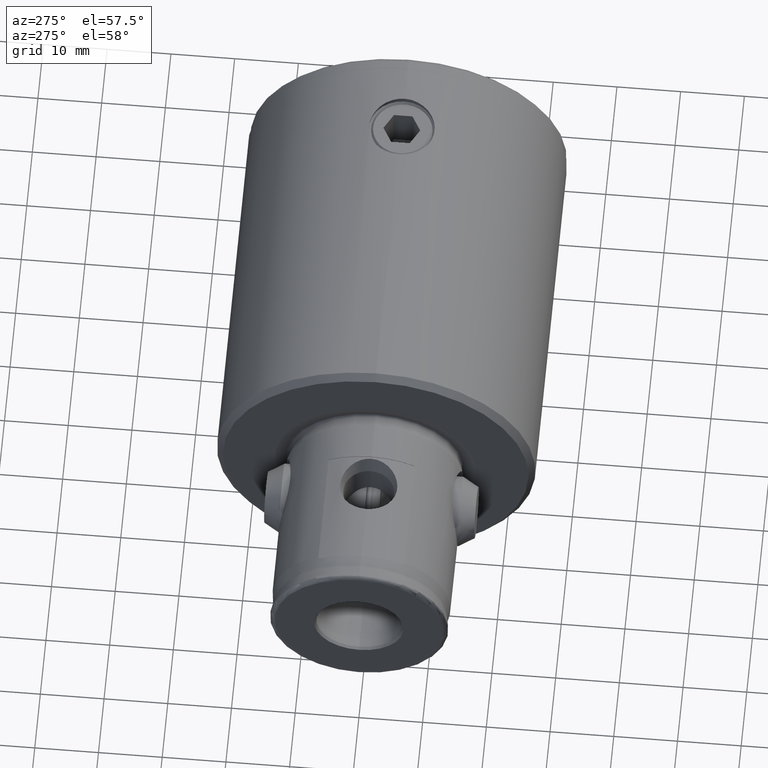
[diagram: clean part render]
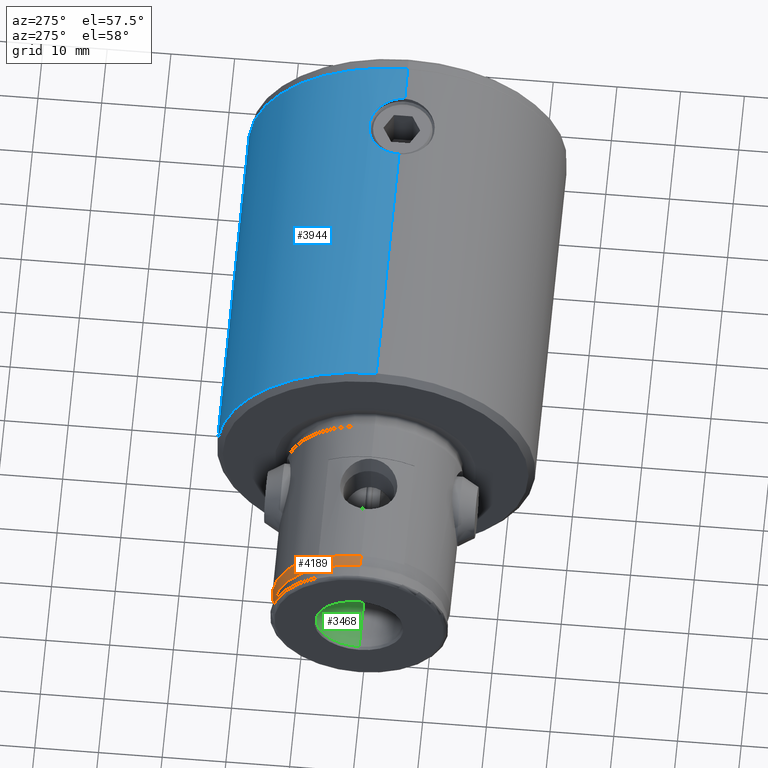
[diagram: same view with three faces highlighted in distinct colors, each labeled with its STEP entity id]
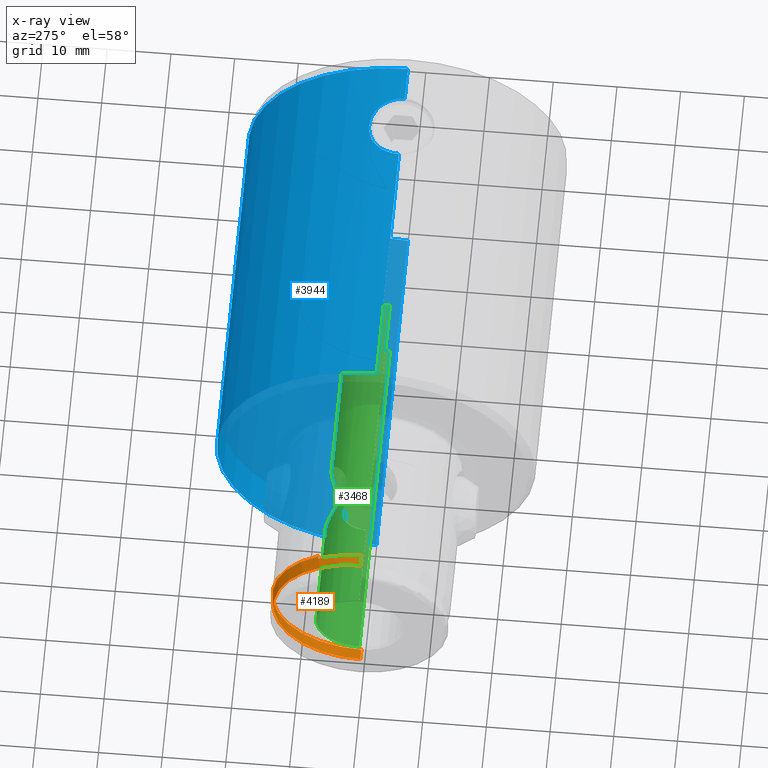
[diagram: x-ray of the same camera — body ghosted, the three highlighted faces saturated]
A machine part, auxiliary view with three faces highlighted in distinct colors.
The next image is the same camera in x-ray (body ghosted, the three faces saturated) — at least one of them is partly hidden behind the body in this view.
Their STEP definitions:

[orange] entity #4189 — the highlighted conical surface has half-angle 10 deg.
#4 = CARTESIAN_POINT ( 'NONE',  ( 12.19529657203607800, 6.750000000000000000, 85.84756804027078700 ) ) ;
#72 = DIRECTION ( 'NONE',  ( -1.000000000000000000, 0.0000000000000000000, 0.0000000000000000000 ) ) ;
#175 = CARTESIAN_POINT ( 'NONE',  ( -13.64734603858307000, 1.692911691553500600E-015, 87.50000000000000000 ) ) ;
#220 = VERTEX_POINT ( 'NONE', #2241 ) ;
#263 = CARTESIAN_POINT ( 'NONE',  ( 13.92999999999999800, 2.207735981836106700E-015, 85.89698972737325300 ) ) ;
#264 = ORIENTED_EDGE ( 'NONE', *, *, #2728, .F. ) ;
#290 = FACE_OUTER_BOUND ( 'NONE', #3448, .T. ) ;
#358 = CARTESIAN_POINT ( 'NONE',  ( 12.26529657203608200, 6.750000000000000000, 85.49999999999998600 ) ) ;
#631 = CARTESIAN_POINT ( 'NONE',  ( 13.62566706623489500, 2.918193365381274200, 85.88831703268405700 ) ) ;
#644 = CARTESIAN_POINT ( 'NONE',  ( 13.92999999999999600, 0.5841741779149369800, 85.89698972737323900 ) ) ;
#945 = DIRECTION ( 'NONE',  ( 1.000000000000000000, 0.0000000000000000000, 0.0000000000000000000 ) ) ;
#961 = DIRECTION ( 'NONE',  ( 0.0000000000000000000, 0.0000000000000000000, 1.000000000000000000 ) ) ;
#971 = DIRECTION ( 'NONE',  ( 1.000000000000000000, 0.0000000000000000000, 0.0000000000000000000 ) ) ;
#1131 = CONICAL_SURFACE ( 'NONE', #2423, 13.64734603858307000, 0.1745329251994337200 ) ;
#1152 = CARTESIAN_POINT ( 'NONE',  ( 0.0000000000000000000, 0.0000000000000000000, 87.50000000000000000 ) ) ;
#1165 = EDGE_CURVE ( 'NONE', #2285, #4094, #4638, .T. ) ;
#1362 = CARTESIAN_POINT ( 'NONE',  ( 13.89358345885705900, 1.168449472071401600, 85.89595187474115800 ) ) ;
#1702 = CIRCLE ( 'NONE', #4491, 14.00000000000000200 ) ;
#1871 = VERTEX_POINT ( 'NONE', #2853 ) ;
#2050 = B_SPLINE_CURVE_WITH_KNOTS ( 'NONE', 3,
 ( #2123, #2436, #3540, #3893, #631, #3171, #3494, #1362, #644, #263 ),
 .UNSPECIFIED., .F., .F.,
 ( 4, 2, 2, 2, 4 ),
 ( 2.250691753477035200E-007, 0.003505266093153995700, 0.004381526349148657200, 0.005257786605143319500, 0.007010307117132643300 ),
 .UNSPECIFIED. ) ;
#2119 = CARTESIAN_POINT ( 'NONE',  ( 0.0000000000000000000, 0.0000000000000000000, 87.50000000000000000 ) ) ;
#2123 = CARTESIAN_POINT ( 'NONE',  ( 12.19529657203607800, 6.750000000000000000, 85.84756804027078700 ) ) ;
#2180 = CARTESIAN_POINT ( 'NONE',  ( 13.64734603858307000, 0.0000000000000000000, 87.50000000000000000 ) ) ;
#2195 = DIRECTION ( 'NONE',  ( -0.1736481776669311400, 0.0000000000000000000, -0.9848077530122080200 ) ) ;
#2241 = CARTESIAN_POINT ( 'NONE',  ( 13.92999999999999800, 2.207735981836106700E-015, 85.89698972737325300 ) ) ;
#2285 = VERTEX_POINT ( 'NONE', #3436 ) ;
#2329 = VERTEX_POINT ( 'NONE', #175 ) ;
#2423 = AXIS2_PLACEMENT_3D ( 'NONE', #1152, #2604, #72 ) ;
#2436 = CARTESIAN_POINT ( 'NONE',  ( 12.76666059738928600, 5.711785300511198900, 85.86384110839763700 ) ) ;
#2604 = DIRECTION ( 'NONE',  ( 0.0000000000000000000, 0.0000000000000000000, -1.000000000000000000 ) ) ;
#2658 = EDGE_CURVE ( 'NONE', #4145, #220, #3734, .T. ) ;
#2728 = EDGE_CURVE ( 'NONE', #4145, #2329, #3025, .T. ) ;
#2785 = CARTESIAN_POINT ( 'NONE',  ( 0.0000000000000000000, 0.0000000000000000000, 85.49999999999998600 ) ) ;
#2829 = ORIENTED_EDGE ( 'NONE', *, *, #2658, .T. ) ;
#2853 = CARTESIAN_POINT ( 'NONE',  ( -14.00000000000000400, 0.0000000000000000000, 85.49999999999998600 ) ) ;
#2893 = CARTESIAN_POINT ( 'NONE',  ( 12.24197818253157900, 6.750000000000000000, 85.61585900633738800 ) ) ;
#3025 = CIRCLE ( 'NONE', #4117, 13.64734603858307000 ) ;
#3053 = ORIENTED_EDGE ( 'NONE', *, *, #3329, .T. ) ;
#3120 = DIRECTION ( 'NONE',  ( 0.0000000000000000000, 0.0000000000000000000, 1.000000000000000000 ) ) ;
#3171 = CARTESIAN_POINT ( 'NONE',  ( 13.73650709996755900, 2.338270858017039700, 85.89147556852006500 ) ) ;
#3175 = LINE ( 'NONE', #3946, #3281 ) ;
#3200 = DIRECTION ( 'NONE',  ( 0.1736481776669311400, 2.126576849575781200E-017, -0.9848077530122080200 ) ) ;
#3281 = VECTOR ( 'NONE', #2195, 999.9999999999998900 ) ;
#3329 = EDGE_CURVE ( 'NONE', #2285, #1871, #1702, .T. ) ;
#3436 = CARTESIAN_POINT ( 'NONE',  ( 12.26529657203608200, 6.750000000000000000, 85.49999999999998600 ) ) ;
#3448 = EDGE_LOOP ( 'NONE', ( #264, #2829, #3609, #4305, #3053, #4036 ) ) ;
#3494 = CARTESIAN_POINT ( 'NONE',  ( 13.78296488589999700, 2.045017888756615500, 85.89279949196569000 ) ) ;
#3540 = CARTESIAN_POINT ( 'NONE',  ( 13.19615552602073200, 4.624224409879828600, 85.87607829345473900 ) ) ;
#3609 = ORIENTED_EDGE ( 'NONE', *, *, #4585, .F. ) ;
#3734 = LINE ( 'NONE', #4487, #4605 ) ;
#3893 = CARTESIAN_POINT ( 'NONE',  ( 13.56134266502923300, 3.205057411833257300, 85.88648406863282500 ) ) ;
#3946 = CARTESIAN_POINT ( 'NONE',  ( -13.64734603858307000, 0.0000000000000000000, 87.50000000000000000 ) ) ;
#3975 = CARTESIAN_POINT ( 'NONE',  ( 12.21864492891368100, 6.750000000000000000, 85.73171506299404100 ) ) ;
#4036 = ORIENTED_EDGE ( 'NONE', *, *, #4206, .F. ) ;
#4094 = VERTEX_POINT ( 'NONE', #4525 ) ;
#4117 = AXIS2_PLACEMENT_3D ( 'NONE', #2119, #3120, #945 ) ;
#4145 = VERTEX_POINT ( 'NONE', #2180 ) ;
#4189 = ADVANCED_FACE ( 'NONE', ( #290 ), #1131, .T. ) ;
#4206 = EDGE_CURVE ( 'NONE', #2329, #1871, #3175, .T. ) ;
#4305 = ORIENTED_EDGE ( 'NONE', *, *, #1165, .F. ) ;
#4487 = CARTESIAN_POINT ( 'NONE',  ( 13.64734603858307000, 1.671317864300706700E-015, 87.50000000000000000 ) ) ;
#4491 = AXIS2_PLACEMENT_3D ( 'NONE', #2785, #961, #971 ) ;
#4525 = CARTESIAN_POINT ( 'NONE',  ( 12.19529657203607800, 6.750000000000000000, 85.84756804027078700 ) ) ;
#4585 = EDGE_CURVE ( 'NONE', #4094, #220, #2050, .T. ) ;
#4605 = VECTOR ( 'NONE', #3200, 999.9999999999998900 ) ;
#4638 = B_SPLINE_CURVE_WITH_KNOTS ( 'NONE', 3,
 ( #358, #2893, #3975, #4 ),
 .UNSPECIFIED., .F., .F.,
 ( 4, 4 ),
 ( 0.004740533502020406900, 0.005095079999007461600 ),
 .UNSPECIFIED. ) ;

[blue] entity #3944 — the highlighted cylindrical surface (partial cylindrical patch) has radius 25 mm, axis along (1, 0, -0).
#61 = DIRECTION ( 'NONE',  ( 0.0000000000000000000, 0.0000000000000000000, -1.000000000000000000 ) ) ;
#79 = CARTESIAN_POINT ( 'NONE',  ( 24.49784742960272200, 4.985974832569773700, 11.71741078199332300 ) ) ;
#99 = CARTESIAN_POINT ( 'NONE',  ( 24.89696535077916900, 2.288583839425817800, 8.424268607487851700 ) ) ;
#194 = ORIENTED_EDGE ( 'NONE', *, *, #1407, .F. ) ;
#325 = CARTESIAN_POINT ( 'NONE',  ( 24.86727391035666200, 2.577024121137481100, 17.51205485041073500 ) ) ;
#336 = CARTESIAN_POINT ( 'NONE',  ( 25.00000000000000400, 0.3365266841853211100, 18.20000000000000300 ) ) ;
#450 = CARTESIAN_POINT ( 'NONE',  ( 24.56813872120153500, 4.628585295703745200, 10.76701160107530500 ) ) ;
#461 = FACE_OUTER_BOUND ( 'NONE', #2717, .T. ) ;
#490 = ORIENTED_EDGE ( 'NONE', *, *, #2550, .T. ) ;
#519 = CARTESIAN_POINT ( 'NONE',  ( 25.00000000000000000, -1.805636716290672400E-017, 7.900000000000000400 ) ) ;
#638 = ORIENTED_EDGE ( 'NONE', *, *, #2863, .T. ) ;
#764 = LINE ( 'NONE', #1481, #4333 ) ;
#803 = CARTESIAN_POINT ( 'NONE',  ( 24.76859280250462400, 3.402121093907772800, 16.93081701177637300 ) ) ;
#840 = CARTESIAN_POINT ( 'NONE',  ( 25.00000000000000000, 3.061617890640566700E-015, 18.19999999999999900 ) ) ;
#873 = DIRECTION ( 'NONE',  ( 1.000000000000000000, 0.0000000000000000000, 0.0000000000000000000 ) ) ;
#880 = LINE ( 'NONE', #4495, #3091 ) ;
#897 = CARTESIAN_POINT ( 'NONE',  ( 24.99302115891263700, 0.6778478492374157000, 7.933571229397161400 ) ) ;
#1049 = CARTESIAN_POINT ( 'NONE',  ( 24.51954477223706500, 4.877953744072979000, 14.71028071143687300 ) ) ;
#1066 = CARTESIAN_POINT ( 'NONE',  ( 24.90980451165047800, 2.127396302691245500, 17.74306298172077900 ) ) ;
#1105 = AXIS2_PLACEMENT_3D ( 'NONE', #3754, #1917, #1322 ) ;
#1133 = AXIS2_PLACEMENT_3D ( 'NONE', #3026, #3047, #873 ) ;
#1161 = CARTESIAN_POINT ( 'NONE',  ( 24.53098236951873500, 4.820299023156183100, 14.87094745699025500 ) ) ;
#1183 = CARTESIAN_POINT ( 'NONE',  ( 24.99320720797193100, 0.6716566140670101600, 18.16733696148265400 ) ) ;
#1227 = CARTESIAN_POINT ( 'NONE',  ( 24.80261338310507200, 3.148150282522363100, 8.960169088107921500 ) ) ;
#1264 = CARTESIAN_POINT ( 'NONE',  ( 24.76784865475218900, 3.407462638608636400, 9.173961908684509200 ) ) ;
#1322 = DIRECTION ( 'NONE',  ( -1.000000000000000000, 0.0000000000000000000, 0.0000000000000000000 ) ) ;
#1407 = EDGE_CURVE ( 'NONE', #1638, #3118, #764, .T. ) ;
#1424 = CARTESIAN_POINT ( 'NONE',  ( 24.46383429888062400, 5.149836058048529200, 13.39245044114118100 ) ) ;
#1433 = CARTESIAN_POINT ( 'NONE',  ( 25.00000000000000000, 3.061616997868383000E-015, 58.99999999999998600 ) ) ;
#1481 = CARTESIAN_POINT ( 'NONE',  ( -25.00000000000000000, 0.0000000000000000000, 60.00000000000000000 ) ) ;
#1534 = CARTESIAN_POINT ( 'NONE',  ( 24.47104771601471600, 5.115891351192528800, 13.73040680813313900 ) ) ;
#1550 = CARTESIAN_POINT ( 'NONE',  ( 24.49980280478643400, 4.976160276119835600, 14.38745791576854000 ) ) ;
#1551 = VERTEX_POINT ( 'NONE', #840 ) ;
#1622 = CARTESIAN_POINT ( 'NONE',  ( 24.66365396577013100, 4.088507319263780600, 9.913919397185173600 ) ) ;
#1638 = VERTEX_POINT ( 'NONE', #2313 ) ;
#1778 = CARTESIAN_POINT ( 'NONE',  ( 24.59775064818665400, 4.470653330904529100, 10.47135949583894500 ) ) ;
#1790 = LINE ( 'NONE', #3071, #1838 ) ;
#1820 = CARTESIAN_POINT ( 'NONE',  ( 24.85163551756717800, 2.723251132896873800, 17.42433508107680900 ) ) ;
#1838 = VECTOR ( 'NONE', #2662, 1000.000000000000000 ) ;
#1891 = CARTESIAN_POINT ( 'NONE',  ( 0.0000000000000000000, 0.0000000000000000000, 58.99999999999998600 ) ) ;
#1896 = CARTESIAN_POINT ( 'NONE',  ( 24.47081762687193100, 5.116987237377689000, 12.37755619752973500 ) ) ;
#1913 = CARTESIAN_POINT ( 'NONE',  ( 24.71559127169412000, 3.762157658194710500, 9.529110483897927300 ) ) ;
#1917 = DIRECTION ( 'NONE',  ( 0.0000000000000000000, 0.0000000000000000000, -1.000000000000000000 ) ) ;
#1936 = VERTEX_POINT ( 'NONE', #1433 ) ;
#1951 = CARTESIAN_POINT ( 'NONE',  ( 24.96614859007487700, 1.342389263542057800, 8.066495998145956700 ) ) ;
#2054 = CARTESIAN_POINT ( 'NONE',  ( 25.00000000000000000, 3.061616997868383000E-015, 2.361743804370863000 ) ) ;
#2160 = CARTESIAN_POINT ( 'NONE',  ( -25.00000000000000000, 0.0000000000000000000, 2.361743804370863000 ) ) ;
#2262 = CARTESIAN_POINT ( 'NONE',  ( 24.49142029539433800, 5.017116908495888900, 14.22440936726712500 ) ) ;
#2313 = CARTESIAN_POINT ( 'NONE',  ( -25.00000000000000000, 0.0000000000000000000, 58.99999999999998600 ) ) ;
#2376 = EDGE_CURVE ( 'NONE', #1936, #1551, #880, .T. ) ;
#2383 = DIRECTION ( 'NONE',  ( 0.0000000000000000000, 0.0000000000000000000, -1.000000000000000000 ) ) ;
#2509 = AXIS2_PLACEMENT_3D ( 'NONE', #1891, #4053, #4375 ) ;
#2550 = EDGE_CURVE ( 'NONE', #4208, #3390, #1790, .T. ) ;
#2624 = CARTESIAN_POINT ( 'NONE',  ( 24.51816255549245900, 4.886404298280551100, 11.38900905993589600 ) ) ;
#2662 = DIRECTION ( 'NONE',  ( 0.0000000000000000000, 0.0000000000000000000, -1.000000000000000000 ) ) ;
#2717 = EDGE_LOOP ( 'NONE', ( #2851, #4245, #4542, #490, #638, #194 ) ) ;
#2851 = ORIENTED_EDGE ( 'NONE', *, *, #3593, .T. ) ;
#2863 = EDGE_CURVE ( 'NONE', #3390, #3118, #4597, .T. ) ;
#2900 = CARTESIAN_POINT ( 'NONE',  ( 24.80318344772761600, 3.143505906101031300, 17.14322454255336600 ) ) ;
#3026 = CARTESIAN_POINT ( 'NONE',  ( 0.0000000000000000000, 0.0000000000000000000, 2.361743804370863000 ) ) ;
#3047 = DIRECTION ( 'NONE',  ( 0.0000000000000000000, 0.0000000000000000000, 1.000000000000000000 ) ) ;
#3069 = CARTESIAN_POINT ( 'NONE',  ( 24.64656799643199700, 4.189952927674479400, 10.05079986036627000 ) ) ;
#3071 = CARTESIAN_POINT ( 'NONE',  ( 25.00000000000000000, 3.061616997868383000E-015, 60.00000000000000000 ) ) ;
#3078 = CYLINDRICAL_SURFACE ( 'NONE', #1105, 25.00000000000000000 ) ;
#3091 = VECTOR ( 'NONE', #2383, 1000.000000000000000 ) ;
#3118 = VERTEX_POINT ( 'NONE', #2160 ) ;
#3218 = CARTESIAN_POINT ( 'NONE',  ( 24.56874257277187500, 4.625408429315768900, 15.33967816888174500 ) ) ;
#3234 = CARTESIAN_POINT ( 'NONE',  ( 24.96634758878917600, 1.339035930660860800, 18.03450027194057300 ) ) ;
#3327 = CARTESIAN_POINT ( 'NONE',  ( 24.59843058934281500, 4.466879029988942500, 15.63493262064149300 ) ) ;
#3390 = VERTEX_POINT ( 'NONE', #2054 ) ;
#3413 = CARTESIAN_POINT ( 'NONE',  ( 25.00000000000000000, 0.3411675342768339400, 7.900000000000000400 ) ) ;
#3559 = CARTESIAN_POINT ( 'NONE',  ( 24.69870195882773700, 3.877078655752970200, 16.45638073526872000 ) ) ;
#3593 = EDGE_CURVE ( 'NONE', #1638, #1936, #4406, .T. ) ;
#3667 = CARTESIAN_POINT ( 'NONE',  ( 24.89632457945036800, 2.279339265726939800, 17.67121188874885000 ) ) ;
#3686 = CARTESIAN_POINT ( 'NONE',  ( 24.94660604695417700, 1.662392879994542000, 17.93585413504666100 ) ) ;
#3700 = CARTESIAN_POINT ( 'NONE',  ( 24.69813636360804300, 3.874761825911901000, 9.653367190955018300 ) ) ;
#3711 = EDGE_CURVE ( 'NONE', #1551, #4208, #4025, .T. ) ;
#3736 = CARTESIAN_POINT ( 'NONE',  ( 24.86766563736385300, 2.584508963304592100, 8.582575629312584600 ) ) ;
#3754 = CARTESIAN_POINT ( 'NONE',  ( 0.0000000000000000000, 0.0000000000000000000, 60.00000000000000000 ) ) ;
#3944 = ADVANCED_FACE ( 'NONE', ( #461 ), #3078, .T. ) ;
#3995 = CARTESIAN_POINT ( 'NONE',  ( 25.00000000000000000, -1.805636716290672400E-017, 7.900000000000000400 ) ) ;
#4021 = CARTESIAN_POINT ( 'NONE',  ( 24.46376552464220900, 5.150162753078062900, 12.71249837597131100 ) ) ;
#4025 = B_SPLINE_CURVE_WITH_KNOTS ( 'NONE', 3,
 ( #4379, #336, #1183, #3234, #3686, #1066, #3667, #325, #1820, #2900, #803, #3559, #4259, #3327, #3218, #1161, #1049, #1550, #2262, #1534, #1424, #4021, #1896, #79, #2624, #450, #1778, #3069, #1622, #3700, #1913, #1264, #1227, #3736, #99, #4106, #1951, #897, #3413, #519 ),
 .UNSPECIFIED., .F., .F.,
 ( 4, 2, 2, 2, 2, 2, 2, 2, 2, 2, 2, 2, 2, 2, 2, 2, 2, 2, 2, 4 ),
 ( 0.01614454279720665600, 0.01715331445725046600, 0.01816208611729427600, 0.01866647194731618100, 0.01917085777733808200, 0.02017962943738189200, 0.02118840109742570500, 0.02219717275746951500, 0.02270155858749142000, 0.02320594441751332500, 0.02421471607755714200, 0.02522348773760095500, 0.02623225939764477200, 0.02724103105768858900, 0.02774541688771049400, 0.02824980271773239900, 0.02925857437777621600, 0.03026734603782003200, 0.03127611769786384200, 0.03228488935790765900 ),
 .UNSPECIFIED. ) ;
#4053 = DIRECTION ( 'NONE',  ( -0.0000000000000000000, -0.0000000000000000000, -1.000000000000000000 ) ) ;
#4106 = CARTESIAN_POINT ( 'NONE',  ( 24.94614438028718700, 1.669245406117686000, 8.166494427165215300 ) ) ;
#4208 = VERTEX_POINT ( 'NONE', #3995 ) ;
#4245 = ORIENTED_EDGE ( 'NONE', *, *, #2376, .T. ) ;
#4259 = CARTESIAN_POINT ( 'NONE',  ( 24.66321903786014100, 4.094071618548548000, 16.19220662974394300 ) ) ;
#4333 = VECTOR ( 'NONE', #61, 1000.000000000000000 ) ;
#4375 = DIRECTION ( 'NONE',  ( 1.000000000000000000, 0.0000000000000000000, 0.0000000000000000000 ) ) ;
#4379 = CARTESIAN_POINT ( 'NONE',  ( 25.00000000000000000, 3.061617890640566700E-015, 18.19999999999999900 ) ) ;
#4406 = CIRCLE ( 'NONE', #2509, 25.00000000000000000 ) ;
#4495 = CARTESIAN_POINT ( 'NONE',  ( 25.00000000000000000, 3.061616997868383000E-015, 60.00000000000000000 ) ) ;
#4542 = ORIENTED_EDGE ( 'NONE', *, *, #3711, .T. ) ;
#4597 = CIRCLE ( 'NONE', #1133, 25.00000000000000000 ) ;

[green] entity #3468 — the highlighted cylindrical surface (partial cylindrical patch) has radius 6.75 mm, axis along (-1, 0, 0).
#24 = DIRECTION ( 'NONE',  ( 0.0000000000000000000, 1.000000000000000000, 0.0000000000000000000 ) ) ;
#39 = CARTESIAN_POINT ( 'NONE',  ( -1.857512595492817100, 6.491992116016978900, 72.68021526150526800 ) ) ;
#74 = CARTESIAN_POINT ( 'NONE',  ( -0.3817685701617598600, 6.750000000000002700, 62.00000000000000700 ) ) ;
#75 = CARTESIAN_POINT ( 'NONE',  ( 6.750000000000000000, 4.897215371997860800E-016, 76.50000000000000000 ) ) ;
#116 = CARTESIAN_POINT ( 'NONE',  ( 5.721075285810838900, 3.584188540895040900, 74.29484355363921100 ) ) ;
#146 = CARTESIAN_POINT ( 'NONE',  ( -5.189907688949317000, 4.316798984977901400, 65.67048960648477900 ) ) ;
#151 = FACE_BOUND ( 'NONE', #2859, .T. ) ;
#172 = CARTESIAN_POINT ( 'NONE',  ( 1.854611369136912400, 6.492801467390341600, 62.31877166844822100 ) ) ;
#190 = CARTESIAN_POINT ( 'NONE',  ( 5.418665270350120800, 4.025501229171201300, 66.53944504115648300 ) ) ;
#206 = CARTESIAN_POINT ( 'NONE',  ( 5.341386816771182200, 4.127490803355048100, 66.17554312464301300 ) ) ;
#207 = AXIS2_PLACEMENT_3D ( 'NONE', #4104, #1981, #4455 ) ;
#216 = CARTESIAN_POINT ( 'NONE',  ( 5.719938381657448700, 3.585992041903439500, 70.70877962087408300 ) ) ;
#237 = CARTESIAN_POINT ( 'NONE',  ( 0.7736997682246111700, 6.716020452496785300, 72.95844057590238700 ) ) ;
#269 = EDGE_CURVE ( 'NONE', #2562, #3937, #3622, .T. ) ;
#275 = DIRECTION ( 'NONE',  ( 0.0000000000000000000, 0.0000000000000000000, 1.000000000000000000 ) ) ;
#276 = EDGE_CURVE ( 'NONE', #962, #3961, #2529, .T. ) ;
#278 = CARTESIAN_POINT ( 'NONE',  ( 5.201135595051477300, 4.307388412481533800, 69.32247585804779500 ) ) ;
#418 = EDGE_CURVE ( 'NONE', #3937, #1071, #3027, .T. ) ;
#481 = CIRCLE ( 'NONE', #3906, 6.750000000000000000 ) ;
#487 = CARTESIAN_POINT ( 'NONE',  ( -6.750000000000000000, 8.266365894244632400E-016, 0.0000000000000000000 ) ) ;
#522 = CARTESIAN_POINT ( 'NONE',  ( 5.958834391477123100, 3.175178970617240200, 70.05381523053124200 ) ) ;
#555 = CARTESIAN_POINT ( 'NONE',  ( 6.717768739422283800, 0.6716768385123357300, 68.55457481349425600 ) ) ;
#564 = ORIENTED_EDGE ( 'NONE', *, *, #1739, .T. ) ;
#575 = CARTESIAN_POINT ( 'NONE',  ( 5.448328063931970900, 3.984897977690861700, 66.72436780120092700 ) ) ;
#588 = CARTESIAN_POINT ( 'NONE',  ( 5.500419768130421400, 3.912528969084000600, 67.68061183889496100 ) ) ;
#596 = CARTESIAN_POINT ( 'NONE',  ( -1.860946513353740600E-015, 6.750000000000000000, 73.00000000000001400 ) ) ;
#628 = CARTESIAN_POINT ( 'NONE',  ( 0.0000000000000000000, 0.0000000000000000000, 89.56698729810771900 ) ) ;
#634 = CARTESIAN_POINT ( 'NONE',  ( 5.452178079599800500, 3.979615234471240500, 68.24808637127242200 ) ) ;
#655 = CARTESIAN_POINT ( 'NONE',  ( 6.750000000000000000, 0.0000000000000000000, 0.0000000000000000000 ) ) ;
#690 = DIRECTION ( 'NONE',  ( 1.000000000000000000, 0.0000000000000000000, 0.0000000000000000000 ) ) ;
#715 = CARTESIAN_POINT ( 'NONE',  ( -1.860946513353740600E-015, 6.750000000000000000, 73.00000000000001400 ) ) ;
#720 = VERTEX_POINT ( 'NONE', #75 ) ;
#798 = CARTESIAN_POINT ( 'NONE',  ( -2.363785542025302900, 6.325046121362129600, 72.46947664889805200 ) ) ;
#811 = CARTESIAN_POINT ( 'NONE',  ( -3.686850350302223400, 5.661781526926380300, 71.59552579228102300 ) ) ;
#859 = CARTESIAN_POINT ( 'NONE',  ( 5.488782510262955900, 3.928989328041609500, 67.10106321920122200 ) ) ;
#864 = CARTESIAN_POINT ( 'NONE',  ( -5.298198555532568600, 4.183179097609143000, 66.01294177452659500 ) ) ;
#885 = CARTESIAN_POINT ( 'NONE',  ( 6.750000000000000000, 2.896625891565787000E-016, 68.49999999999998600 ) ) ;
#916 = CARTESIAN_POINT ( 'NONE',  ( 5.532990606326878300, 3.866882814063249600, 71.44231472136741000 ) ) ;
#920 = CARTESIAN_POINT ( 'NONE',  ( 5.124061402421903100, 4.395117037456299300, 65.49403192602035500 ) ) ;
#936 = CARTESIAN_POINT ( 'NONE',  ( 6.735557038842365400E-016, 6.750000000000000000, 62.00000000000000700 ) ) ;
#947 = CARTESIAN_POINT ( 'NONE',  ( 6.750000000000000000, 0.0000000000000000000, 89.56698729810771900 ) ) ;
#962 = VERTEX_POINT ( 'NONE', #596 ) ;
#1002 = ORIENTED_EDGE ( 'NONE', *, *, #418, .T. ) ;
#1029 = ORIENTED_EDGE ( 'NONE', *, *, #1636, .F. ) ;
#1071 = VERTEX_POINT ( 'NONE', #3535 ) ;
#1119 = CARTESIAN_POINT ( 'NONE',  ( -1.501302088357698200, 6.583495022883652400, 72.79443814180875400 ) ) ;
#1129 = VERTEX_POINT ( 'NONE', #3280 ) ;
#1155 = CARTESIAN_POINT ( 'NONE',  ( -2.991171913197865400, 6.053267667720023200, 72.11885964121185600 ) ) ;
#1208 = CARTESIAN_POINT ( 'NONE',  ( -4.922602346687682500, 4.623111939851465700, 69.97781541585408100 ) ) ;
#1213 = CARTESIAN_POINT ( 'NONE',  ( 6.442360800514767200, 2.027367338874889800, 75.95787299108444300 ) ) ;
#1223 = EDGE_CURVE ( 'NONE', #3961, #962, #3021, .T. ) ;
#1225 = CARTESIAN_POINT ( 'NONE',  ( -2.838944684500806800, 6.126341781055139700, 72.21408768473500600 ) ) ;
#1239 = CARTESIAN_POINT ( 'NONE',  ( 0.3827522564661474700, 6.741856795804514100, 62.00998466634954600 ) ) ;
#1272 = CARTESIAN_POINT ( 'NONE',  ( 0.1902954454134367400, 6.750000000000004400, 62.00000000000002100 ) ) ;
#1278 = ORIENTED_EDGE ( 'NONE', *, *, #1750, .T. ) ;
#1304 = ORIENTED_EDGE ( 'NONE', *, *, #276, .F. ) ;
#1309 = CARTESIAN_POINT ( 'NONE',  ( 1.513948395683096100, 6.588740570466751700, 72.80105132093785900 ) ) ;
#1349 = CARTESIAN_POINT ( 'NONE',  ( 1.866434860118907800, 6.496602858164612500, 72.68666579192353100 ) ) ;
#1490 = CARTESIAN_POINT ( 'NONE',  ( -0.7647832051152025900, 6.716960585947847800, 72.95959212244380900 ) ) ;
#1527 = CARTESIAN_POINT ( 'NONE',  ( -3.682962764071149300, 5.664371561770296100, 63.40087620302006900 ) ) ;
#1535 = CARTESIAN_POINT ( 'NONE',  ( 5.957642628352442000, 3.177376463322239400, 74.94323261686339800 ) ) ;
#1569 = CARTESIAN_POINT ( 'NONE',  ( -4.759785341946925800, 4.793022883101473400, 70.27671866048200400 ) ) ;
#1574 = CARTESIAN_POINT ( 'NONE',  ( 6.043453058991270100, 3.013061060084243300, 75.14320437465863700 ) ) ;
#1587 = CARTESIAN_POINT ( 'NONE',  ( -4.381329489557083800, 5.141262176089117700, 70.84210636048874200 ) ) ;
#1602 = CARTESIAN_POINT ( 'NONE',  ( -5.421058099558734100, 4.022259660732032700, 68.44672070218426500 ) ) ;
#1629 = VECTOR ( 'NONE', #4581, 1000.000000000000000 ) ;
#1633 = CARTESIAN_POINT ( 'NONE',  ( 2.530877405694568000, 6.267566671501159100, 62.60327903441534400 ) ) ;
#1636 = EDGE_CURVE ( 'NONE', #720, #1129, #4453, .T. ) ;
#1650 = VERTEX_POINT ( 'NONE', #947 ) ;
#1653 = CARTESIAN_POINT ( 'NONE',  ( 2.028938389783063700, 6.440280825907853700, 62.38465903630779500 ) ) ;
#1689 = CARTESIAN_POINT ( 'NONE',  ( 5.588237310714387900, 3.787959579205200500, 71.18882815866936700 ) ) ;
#1708 = CARTESIAN_POINT ( 'NONE',  ( 5.499552456203617500, 3.913747991507144300, 67.29466845480135400 ) ) ;
#1726 = VERTEX_POINT ( 'NONE', #4236 ) ;
#1727 = AXIS2_PLACEMENT_3D ( 'NONE', #1777, #1809, #690 ) ;
#1733 = CARTESIAN_POINT ( 'NONE',  ( 4.385260532875550500, 5.137853957585533300, 70.83682819810553600 ) ) ;
#1739 = EDGE_CURVE ( 'NONE', #720, #1650, #2406, .T. ) ;
#1750 = EDGE_CURVE ( 'NONE', #1650, #1726, #481, .T. ) ;
#1777 = CARTESIAN_POINT ( 'NONE',  ( 0.0000000000000000000, 0.0000000000000000000, 0.0000000000000000000 ) ) ;
#1794 = CARTESIAN_POINT ( 'NONE',  ( 6.750000000000000000, 0.0000000000000000000, 0.0000000000000000000 ) ) ;
#1809 = DIRECTION ( 'NONE',  ( 0.0000000000000000000, 0.0000000000000000000, 1.000000000000000000 ) ) ;
#1814 = ORIENTED_EDGE ( 'NONE', *, *, #269, .T. ) ;
#1890 = CARTESIAN_POINT ( 'NONE',  ( -2.840033917991687600, 6.125850325615577900, 62.78654898196882100 ) ) ;
#1908 = CARTESIAN_POINT ( 'NONE',  ( -3.424934320415511800, 5.825715439867760600, 71.81783743312759300 ) ) ;
#1919 = ORIENTED_EDGE ( 'NONE', *, *, #3500, .T. ) ;
#1933 = CARTESIAN_POINT ( 'NONE',  ( 6.209988912645866500, 2.652903981082298700, 75.50452438585017500 ) ) ;
#1946 = CARTESIAN_POINT ( 'NONE',  ( -2.990055301992396800, 6.053789927989146900, 62.88046305574636100 ) ) ;
#1953 = CARTESIAN_POINT ( 'NONE',  ( 6.750000000000000000, 4.897215371997860800E-016, 76.50000000000000000 ) ) ;
#1960 = CARTESIAN_POINT ( 'NONE',  ( 2.842100306349101900, 6.131296472224503800, 62.77795557946187400 ) ) ;
#1967 = CARTESIAN_POINT ( 'NONE',  ( -5.450399794277231500, 3.982059062328872700, 68.26147611985626900 ) ) ;
#1972 = DIRECTION ( 'NONE',  ( 0.0000000000000000000, 0.0000000000000000000, 1.000000000000000000 ) ) ;
#1977 = CYLINDRICAL_SURFACE ( 'NONE', #1727, 6.750000000000000000 ) ;
#1981 = DIRECTION ( 'NONE',  ( 0.0000000000000000000, 1.300461643580481600E-016, -1.000000000000000000 ) ) ;
#2006 = CARTESIAN_POINT ( 'NONE',  ( 4.376177973711369500, 5.145722171056991800, 64.15099239746734800 ) ) ;
#2024 = CARTESIAN_POINT ( 'NONE',  ( 3.685739581839858400, 5.662448977752169400, 63.40358570703116900 ) ) ;
#2053 = CARTESIAN_POINT ( 'NONE',  ( 6.745848734037769700, 0.2720753379613908300, 68.50699402527710900 ) ) ;
#2058 = CARTESIAN_POINT ( 'NONE',  ( 5.309416964826785300, 4.169936751517516500, 68.98287174903248300 ) ) ;
#2085 = LINE ( 'NONE', #1794, #3798 ) ;
#2090 = DIRECTION ( 'NONE',  ( 0.0000000000000000000, 0.0000000000000000000, 1.000000000000000000 ) ) ;
#2096 = CARTESIAN_POINT ( 'NONE',  ( 2.539949170496262500, 6.264031129797729100, 72.39221211063785700 ) ) ;
#2214 = DIRECTION ( 'NONE',  ( 0.0000000000000000000, 1.300461643580481600E-016, -1.000000000000000000 ) ) ;
#2255 = CARTESIAN_POINT ( 'NONE',  ( -2.361981823390961700, 6.325730559273228700, 62.52965185260442400 ) ) ;
#2264 = CARTESIAN_POINT ( 'NONE',  ( 5.442266239274048600, 3.993059221336829400, 72.77119188834331000 ) ) ;
#2297 = CARTESIAN_POINT ( 'NONE',  ( 6.625296451473741600, 1.315062269636406700, 76.28670885578051800 ) ) ;
#2322 = CARTESIAN_POINT ( 'NONE',  ( -5.344515699458857400, 4.123422070700738300, 66.18842112441562600 ) ) ;
#2325 = CARTESIAN_POINT ( 'NONE',  ( 5.533506981268013500, 3.866140142467595200, 73.55980319698632300 ) ) ;
#2340 = CARTESIAN_POINT ( 'NONE',  ( 5.797376949155815100, 3.461197669867651900, 70.47869049575933800 ) ) ;
#2372 = CARTESIAN_POINT ( 'NONE',  ( 6.452979579013213400, 2.042538279847483400, 69.02043146406173000 ) ) ;
#2378 = CARTESIAN_POINT ( 'NONE',  ( 5.293940432521731400, 4.188567930445370500, 65.99798614895652800 ) ) ;
#2405 = CARTESIAN_POINT ( 'NONE',  ( 4.755755033597238500, 4.791565243249351600, 70.26811385314918800 ) ) ;
#2406 = LINE ( 'NONE', #655, #1629 ) ;
#2424 = CARTESIAN_POINT ( 'NONE',  ( 4.172750554616535500, 5.313914340629372300, 71.09941584076591400 ) ) ;
#2438 = CARTESIAN_POINT ( 'NONE',  ( 5.423027599950380300, 4.019604073125632800, 68.43566870888884100 ) ) ;
#2446 = DIRECTION ( 'NONE',  ( 1.000000000000000000, 0.0000000000000000000, 0.0000000000000000000 ) ) ;
#2459 = AXIS2_PLACEMENT_3D ( 'NONE', #3963, #2214, #24 ) ;
#2477 = FACE_OUTER_BOUND ( 'NONE', #4313, .T. ) ;
#2529 = B_SPLINE_CURVE_WITH_KNOTS ( 'NONE', 3,
 ( #715, #2554, #1490, #2932, #1119, #39, #4033, #798, #4088, #1225, #1155, #1908, #811, #3320, #1587, #1569, #1208, #3381, #3729, #1602, #1967, #4438, #3337, #4072, #3351, #3369, #3031, #2322, #864, #146, #2690, #2657, #2638, #2960, #3662, #1527, #4016, #1946, #1890, #4373, #2255, #4388, #3680, #2674, #74, #4405 ),
 .UNSPECIFIED., .F., .F.,
 ( 4, 2, 2, 2, 2, 2, 2, 2, 2, 2, 2, 2, 2, 2, 2, 2, 2, 2, 2, 2, 2, 2, 4 ),
 ( 2.286048140871616600E-018, 0.001142365968802878400, 0.001713548953204315900, 0.002284731937605753400, 0.002855914922007190800, 0.003427097906408628300, 0.004569463875211505000, 0.005711829844014380800, 0.006854195812817256600, 0.007996561781620132500, 0.008567744766021569500, 0.009138927750423008300, 0.009710110734824447000, 0.01028129371922588400, 0.01085247670362732300, 0.01142365968802876000, 0.01256602565683167200, 0.01370839162563458600, 0.01485075759443749800, 0.01542194057883895600, 0.01599312356324041800, 0.01713548953204334700, 0.01827785550084628000 ),
 .UNSPECIFIED. ) ;
#2554 = CARTESIAN_POINT ( 'NONE',  ( -0.3872011983491446800, 6.750000000000005300, 73.00000000000001400 ) ) ;
#2562 = VERTEX_POINT ( 'NONE', #4057 ) ;
#2626 = CARTESIAN_POINT ( 'NONE',  ( 5.437154385385150900, 3.999981523708704400, 72.63497384020198000 ) ) ;
#2627 = EDGE_CURVE ( 'NONE', #2562, #1726, #3677, .T. ) ;
#2638 = CARTESIAN_POINT ( 'NONE',  ( -4.757282992218865300, 4.795481753072930800, 64.71909931251724400 ) ) ;
#2647 = CARTESIAN_POINT ( 'NONE',  ( 6.291276959680965700, 2.456433436373427700, 75.66749723312813100 ) ) ;
#2657 = CARTESIAN_POINT ( 'NONE',  ( -4.920793068135068900, 4.625108132851981900, 65.01825005107227200 ) ) ;
#2674 = CARTESIAN_POINT ( 'NONE',  ( -0.7598852874531762900, 6.717793971896628400, 62.03937750776746900 ) ) ;
#2681 = CARTESIAN_POINT ( 'NONE',  ( 0.0000000000000000000, 6.749999999999994700, 34.72977675699647200 ) ) ;
#2690 = CARTESIAN_POINT ( 'NONE',  ( -5.127521942925314500, 4.391110467730722000, 65.50266664476818300 ) ) ;
#2720 = CARTESIAN_POINT ( 'NONE',  ( 4.161610567788675200, 5.322499616989863300, 63.88803601805749800 ) ) ;
#2760 = CARTESIAN_POINT ( 'NONE',  ( 6.671238403127048900, 1.060822612718788500, 68.63415286189741900 ) ) ;
#2788 = CARTESIAN_POINT ( 'NONE',  ( 3.693228758943119900, 5.657702196538319400, 71.58995145691541500 ) ) ;
#2802 = CARTESIAN_POINT ( 'NONE',  ( 4.667715407165804500, 4.877634794177943400, 70.41396052974711500 ) ) ;
#2859 = EDGE_LOOP ( 'NONE', ( #1304, #4529 ) ) ;
#2932 = CARTESIAN_POINT ( 'NONE',  ( -1.317967687337664900, 6.622722203983386200, 72.84307692708077300 ) ) ;
#2960 = CARTESIAN_POINT ( 'NONE',  ( -4.379352591836736900, 5.142923058775348700, 64.15538926359587900 ) ) ;
#2969 = CARTESIAN_POINT ( 'NONE',  ( 5.476802566643002000, 3.945655005730727800, 73.17034482181749400 ) ) ;
#3003 = CARTESIAN_POINT ( 'NONE',  ( 6.671770889651566200, 1.057860009475694700, 76.36676601575776100 ) ) ;
#3021 = B_SPLINE_CURVE_WITH_KNOTS ( 'NONE', 3,
 ( #4083, #1272, #1239, #3094, #4146, #3766, #3044, #172, #1653, #1633, #1960, #4112, #2024, #2720, #2006, #3076, #4132, #920, #4492, #2378, #206, #190, #575, #859, #1708, #588, #3808, #634, #2438, #2058, #278, #4185, #4519, #2405, #2802, #1733, #2424, #2788, #4158, #4211, #2096, #1349, #1309, #237, #3160, #3851 ),
 .UNSPECIFIED., .F., .F.,
 ( 4, 2, 2, 2, 2, 2, 2, 2, 2, 2, 2, 2, 2, 2, 2, 2, 2, 2, 2, 2, 2, 2, 4 ),
 ( 0.01827785550084628000, 0.01884727650050162900, 0.01941669750015697500, 0.01998611849981232100, 0.02055553949946767000, 0.02169438149877836500, 0.02283322349808905900, 0.02397206549739975400, 0.02511090749671045200, 0.02568032849636579800, 0.02624974949602114700, 0.02681917049567649600, 0.02738859149533184200, 0.02795801249498718700, 0.02852743349464253700, 0.02966627549395319300, 0.03023569649360850400, 0.03080511749326381500, 0.03194395949257446800, 0.03308280149188512500, 0.03422164349119577500, 0.03536048549050643100, 0.03649932748981708800 ),
 .UNSPECIFIED. ) ;
#3027 = CIRCLE ( 'NONE', #207, 6.750000000000000000 ) ;
#3031 = CARTESIAN_POINT ( 'NONE',  ( -5.420440902389912300, 4.023093095940310200, 66.54978548088347200 ) ) ;
#3044 = CARTESIAN_POINT ( 'NONE',  ( 1.499744274723311000, 6.583830293675009500, 62.20514613377847000 ) ) ;
#3076 = CARTESIAN_POINT ( 'NONE',  ( 4.757094304534332400, 4.795773566075761000, 64.71848254415238000 ) ) ;
#3094 = CARTESIAN_POINT ( 'NONE',  ( 0.7641598986244351200, 6.709336181344601100, 62.04996997229544300 ) ) ;
#3160 = CARTESIAN_POINT ( 'NONE',  ( 0.3860067604478099600, 6.750000000000001800, 72.99999999999998600 ) ) ;
#3280 = CARTESIAN_POINT ( 'NONE',  ( 6.750000000000000000, 2.896625891565787000E-016, 68.49999999999998600 ) ) ;
#3320 = CARTESIAN_POINT ( 'NONE',  ( -4.164353897295601600, 5.320412783069318900, 71.10892693730998800 ) ) ;
#3337 = CARTESIAN_POINT ( 'NONE',  ( -5.500082360770543100, 3.913003200251692800, 67.68826718667953900 ) ) ;
#3351 = CARTESIAN_POINT ( 'NONE',  ( -5.489947441452943400, 3.927356175749005600, 67.11679421777205300 ) ) ;
#3369 = CARTESIAN_POINT ( 'NONE',  ( -5.450219367951128800, 3.982305649032981300, 66.73745267513483300 ) ) ;
#3381 = CARTESIAN_POINT ( 'NONE',  ( -5.196108350477164400, 4.313425075518734900, 69.33631182231141600 ) ) ;
#3386 = CARTESIAN_POINT ( 'NONE',  ( 6.750000000000000900, 0.2702893201860548900, 76.50000000000000000 ) ) ;
#3402 = CARTESIAN_POINT ( 'NONE',  ( 6.625965073368721600, 1.312131420418245300, 68.71210466211319100 ) ) ;
#3440 = CARTESIAN_POINT ( 'NONE',  ( 5.457112084850424000, 3.973247467850274300, 71.96634711135867200 ) ) ;
#3468 = ADVANCED_FACE ( 'NONE', ( #2477, #151 ), #1977, .F. ) ;
#3500 = EDGE_CURVE ( 'NONE', #1071, #1129, #2085, .T. ) ;
#3501 = VECTOR ( 'NONE', #1972, 1000.000000000000000 ) ;
#3535 = CARTESIAN_POINT ( 'NONE',  ( 6.750000000000000000, 0.0000000000000000000, 34.72977675699647200 ) ) ;
#3622 = CIRCLE ( 'NONE', #2459, 6.750000000000000000 ) ;
#3662 = CARTESIAN_POINT ( 'NONE',  ( -4.162537352940058000, 5.321898410971915200, 63.88886258778754300 ) ) ;
#3677 = LINE ( 'NONE', #487, #3501 ) ;
#3680 = CARTESIAN_POINT ( 'NONE',  ( -1.507225667677724900, 6.590481946385403400, 62.19678451885492600 ) ) ;
#3720 = CARTESIAN_POINT ( 'NONE',  ( 5.589085261153077700, 3.786718350519397100, 73.81477565103828900 ) ) ;
#3729 = CARTESIAN_POINT ( 'NONE',  ( -5.307396563085251100, 4.172507221171083600, 68.98934406672650300 ) ) ;
#3766 = CARTESIAN_POINT ( 'NONE',  ( 1.319139531392796700, 6.622474857342953500, 62.15722977093205500 ) ) ;
#3791 = CARTESIAN_POINT ( 'NONE',  ( 6.749999999999994700, 0.1354406654623969700, 68.50000000000000000 ) ) ;
#3798 = VECTOR ( 'NONE', #275, 1000.000000000000000 ) ;
#3808 = CARTESIAN_POINT ( 'NONE',  ( 5.490726418233160500, 3.926258604093804600, 67.87121749779407800 ) ) ;
#3851 = CARTESIAN_POINT ( 'NONE',  ( -1.860946513353740600E-015, 6.750000000000000000, 73.00000000000001400 ) ) ;
#3906 = AXIS2_PLACEMENT_3D ( 'NONE', #628, #2090, #2446 ) ;
#3937 = VERTEX_POINT ( 'NONE', #2681 ) ;
#3961 = VERTEX_POINT ( 'NONE', #936 ) ;
#3963 = CARTESIAN_POINT ( 'NONE',  ( 0.0000000000000000000, -5.406188145609239600E-015, 34.72977675699647200 ) ) ;
#4016 = CARTESIAN_POINT ( 'NONE',  ( -3.420992270235803100, 5.827909118351934500, 63.17923374386252500 ) ) ;
#4033 = CARTESIAN_POINT ( 'NONE',  ( -2.029798212795500300, 6.440000756318137400, 72.61498772901390500 ) ) ;
#4039 = CARTESIAN_POINT ( 'NONE',  ( 6.733831942386241400, 0.5358189762864864500, 76.47288877832214400 ) ) ;
#4057 = CARTESIAN_POINT ( 'NONE',  ( -6.750000000000000000, 8.266365894244631400E-016, 34.72977675699647200 ) ) ;
#4059 = CARTESIAN_POINT ( 'NONE',  ( 5.796836705629415200, 3.462067458196598700, 74.51970189005091100 ) ) ;
#4072 = CARTESIAN_POINT ( 'NONE',  ( -5.499916599892668700, 3.913236181814782300, 67.30695103454165500 ) ) ;
#4083 = CARTESIAN_POINT ( 'NONE',  ( 6.735557038842365400E-016, 6.750000000000000000, 62.00000000000000700 ) ) ;
#4088 = CARTESIAN_POINT ( 'NONE',  ( -2.525483094860462500, 6.262076786301110900, 72.38918855829877000 ) ) ;
#4104 = CARTESIAN_POINT ( 'NONE',  ( 0.0000000000000000000, -5.406188145609239600E-015, 34.72977675699647200 ) ) ;
#4112 = CARTESIAN_POINT ( 'NONE',  ( 3.423824700635259300, 5.826470200814739500, 63.18112722111371200 ) ) ;
#4132 = CARTESIAN_POINT ( 'NONE',  ( 4.919821976567812200, 4.626022895943620500, 65.01705731090254400 ) ) ;
#4146 = CARTESIAN_POINT ( 'NONE',  ( 0.9513465264983439500, 6.685225660061319400, 62.07964368233807300 ) ) ;
#4158 = CARTESIAN_POINT ( 'NONE',  ( 3.427218239015255000, 5.824262462759446800, 71.81586060927526200 ) ) ;
#4166 = CARTESIAN_POINT ( 'NONE',  ( 6.729709352254868500, 0.5399186662999490000, 68.53432104962082900 ) ) ;
#4185 = CARTESIAN_POINT ( 'NONE',  ( 4.995709577997615700, 4.540496934898845500, 69.80731299244871500 ) ) ;
#4211 = CARTESIAN_POINT ( 'NONE',  ( 2.852551152522675400, 6.126239467666042800, 72.21544585153664300 ) ) ;
#4236 = CARTESIAN_POINT ( 'NONE',  ( -6.750000000000000000, 8.266365894244632400E-016, 89.56698729810771900 ) ) ;
#4313 = EDGE_LOOP ( 'NONE', ( #4496, #1814, #1002, #1919, #1029, #564, #1278 ) ) ;
#4373 = CARTESIAN_POINT ( 'NONE',  ( -2.525705061062502500, 6.262000384199201800, 62.61090733374323500 ) ) ;
#4381 = CARTESIAN_POINT ( 'NONE',  ( 5.462128487622991600, 3.965846208433021000, 73.03863794562187200 ) ) ;
#4388 = CARTESIAN_POINT ( 'NONE',  ( -1.859861000877062900, 6.498362718995182700, 62.31114729262731100 ) ) ;
#4405 = CARTESIAN_POINT ( 'NONE',  ( 6.735557038842365400E-016, 6.750000000000000000, 62.00000000000000700 ) ) ;
#4427 = CARTESIAN_POINT ( 'NONE',  ( 6.510998042259591200, 1.797455517286475700, 76.08297451774973300 ) ) ;
#4438 = CARTESIAN_POINT ( 'NONE',  ( -5.490174294773257000, 3.927039407281744900, 67.88038140277828300 ) ) ;
#4453 = B_SPLINE_CURVE_WITH_KNOTS ( 'NONE', 3,
 ( #1953, #3386, #4039, #3003, #2297, #4427, #1213, #2647, #1933, #1574, #1535, #4059, #116, #3720, #2325, #2969, #4381, #2264, #2626, #4459, #3440, #916, #1689, #216, #2340, #522, #4515, #4488, #2372, #3402, #2760, #555, #4166, #2053, #3791, #885 ),
 .UNSPECIFIED., .F., .F.,
 ( 4, 2, 2, 2, 2, 2, 2, 2, 2, 2, 2, 2, 2, 2, 2, 2, 2, 4 ),
 ( 0.01282351240101251000, 0.01362345416401333100, 0.01442339592701415300, 0.01522333769001497400, 0.01602327945301579600, 0.01682322121601661700, 0.01762316297901743800, 0.01842310474201826200, 0.01882307562351867200, 0.01922304650501908300, 0.02002298826801986500, 0.02082293003102064800, 0.02162287179402142700, 0.02242281355702220900, 0.02402269708302374300, 0.02482263884602450800, 0.02522260972752488800, 0.02562258060902526700 ),
 .UNSPECIFIED. ) ;
#4455 = DIRECTION ( 'NONE',  ( 0.0000000000000000000, 1.000000000000000000, 0.0000000000000000000 ) ) ;
#4459 = CARTESIAN_POINT ( 'NONE',  ( 5.437113690478079200, 4.000036839694332400, 72.23169832037879700 ) ) ;
#4488 = CARTESIAN_POINT ( 'NONE',  ( 6.294978709276160000, 2.468941970932780000, 69.31118430330884900 ) ) ;
#4492 = CARTESIAN_POINT ( 'NONE',  ( 5.185429460658667700, 4.322178608014361600, 65.65794348068580200 ) ) ;
#4496 = ORIENTED_EDGE ( 'NONE', *, *, #2627, .F. ) ;
#4515 = CARTESIAN_POINT ( 'NONE',  ( 6.043303148704463700, 3.013464767402705300, 69.85706884379331400 ) ) ;
#4519 = CARTESIAN_POINT ( 'NONE',  ( 4.919624180191069000, 4.623159238613788500, 69.96514871138869300 ) ) ;
#4529 = ORIENTED_EDGE ( 'NONE', *, *, #1223, .F. ) ;
#4581 = DIRECTION ( 'NONE',  ( 0.0000000000000000000, 0.0000000000000000000, 1.000000000000000000 ) ) ;